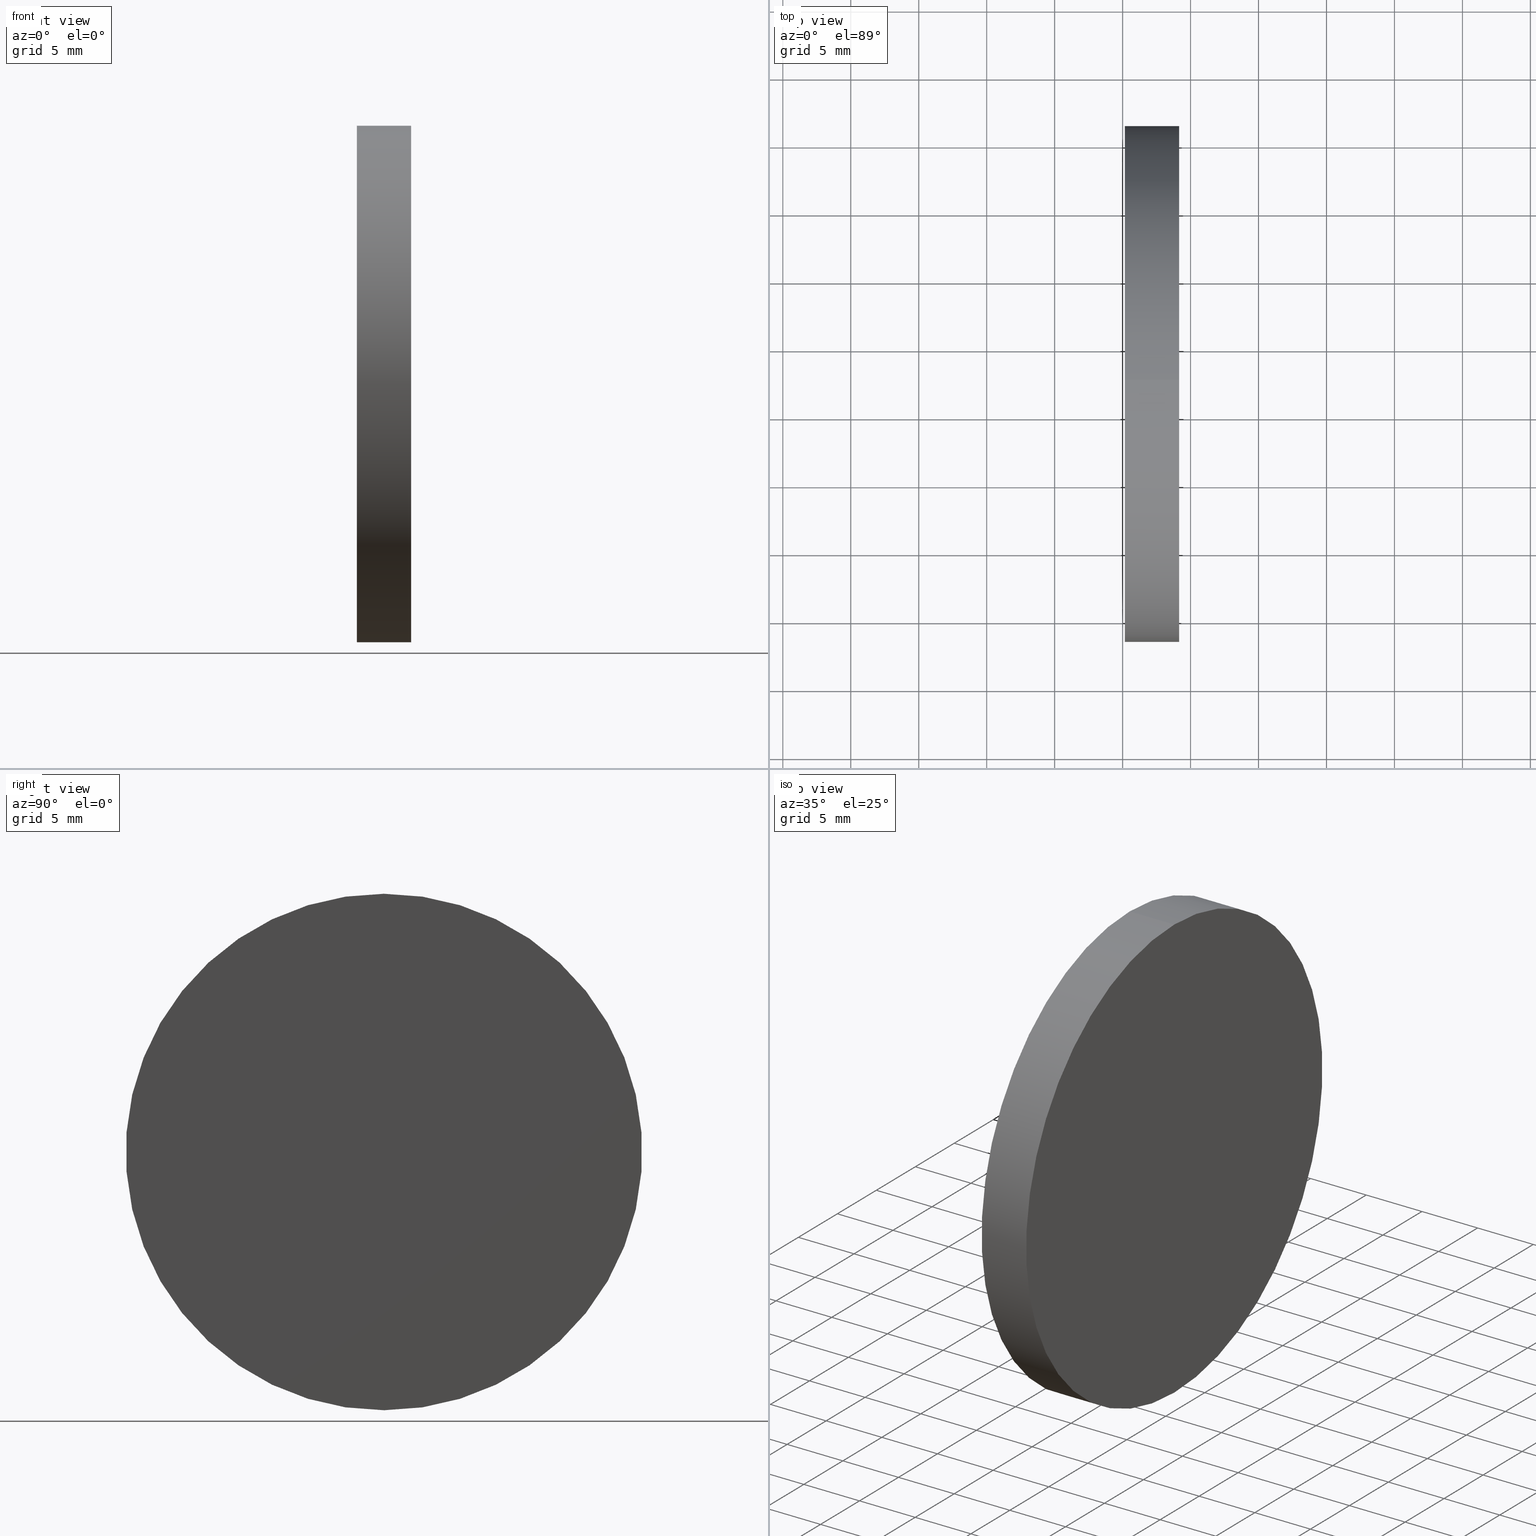
[diagram: canonical four-view strip — front | top / right | iso, engineering-drawing reading convention]
A machine part, canonical four-view strip (front | top / right | iso — engineering-drawing reading convention). The complete STEP part file that produces these views, byte-faithful:
ISO-10303-21;
HEADER;
FILE_DESCRIPTION (( 'STEP AP214' ),
    '1' );
FILE_NAME ('260010.STEP',
    '2019-07-15T05:20:49',
    ( '' ),
    ( '' ),
    'SwSTEP 2.0',
    'SolidWorks 2016',
    '' );
FILE_SCHEMA (( 'AUTOMOTIVE_DESIGN' ));
ENDSEC;

DATA;
#1 = DIRECTION ( 'NONE',  ( 0.0000000000000000000, 0.0000000000000000000, 1.000000000000000000 ) ) ;
#2 = EDGE_CURVE ( 'NONE', #48, #26, #30, .T. ) ;
#3 =( LENGTH_UNIT ( ) NAMED_UNIT ( * ) SI_UNIT ( .MILLI., .METRE. ) );
#4 = ADVANCED_FACE ( 'NONE', ( #54 ), #8, .F. ) ;
#5 = CARTESIAN_POINT ( 'NONE',  ( 264.1617025640067600, 96.29317934901541800, 0.0000000000000000000 ) ) ;
#6 = EDGE_CURVE ( 'NONE', #127, #26, #70, .T. ) ;
#7 = EDGE_LOOP ( 'NONE', ( #59, #42 ) ) ;
#8 = PLANE ( 'NONE',  #107 ) ;
#9 = AXIS2_PLACEMENT_3D ( 'NONE', #78, #24, #132 ) ;
#10 = VECTOR ( 'NONE', #97, 1000.000000000000000 ) ;
#11 = ADVANCED_BREP_SHAPE_REPRESENTATION ( '260010', ( #49, #128 ), #27 ) ;
#12 = DIRECTION ( 'NONE',  ( 0.0000000000000000000, 0.0000000000000000000, 1.000000000000000000 ) ) ;
#13 = DIRECTION ( 'NONE',  ( 0.0000000000000000000, 0.0000000000000000000, 1.000000000000000000 ) ) ;
#14 = PRODUCT_DEFINITION ( 'δ֪', '', #19, #55 ) ;
#15 = FILL_AREA_STYLE_COLOUR ( '', #35 ) ;
#16 = APPLICATION_PROTOCOL_DEFINITION ( 'draft international standard', 'automotive_design', 1998, #133 ) ;
#17 = EDGE_CURVE ( 'NONE', #127, #77, #79, .T. ) ;
#18 = ADVANCED_FACE ( 'NONE', ( #89 ), #58, .F. ) ;
#19 = PRODUCT_DEFINITION_FORMATION_WITH_SPECIFIED_SOURCE ( '�κ�', '', #122, .NOT_KNOWN. ) ;
#20 = SHAPE_DEFINITION_REPRESENTATION ( #75, #11 ) ;
#21 = DIRECTION ( 'NONE',  ( -1.000000000000000000, -0.0000000000000000000, -0.0000000000000000000 ) ) ;
#22 = ORIENTED_EDGE ( 'NONE', *, *, #80, .T. ) ;
#23 = UNCERTAINTY_MEASURE_WITH_UNIT (LENGTH_MEASURE( 1.000000000000000100E-005 ), #3, 'distance_accuracy_value', 'NONE');
#24 = DIRECTION ( 'NONE',  ( -1.000000000000000000, -0.0000000000000000000, -0.0000000000000000000 ) ) ;
#25 = PRODUCT_CONTEXT ( 'NONE', #51, 'mechanical' ) ;
#26 = VERTEX_POINT ( 'NONE', #103 ) ;
#27 =( GEOMETRIC_REPRESENTATION_CONTEXT ( 3 ) GLOBAL_UNCERTAINTY_ASSIGNED_CONTEXT ( ( #93 ) ) GLOBAL_UNIT_ASSIGNED_CONTEXT ( ( #108, #118, #38 ) ) REPRESENTATION_CONTEXT ( 'NONE', 'WORKASPACE' ) );
#28 = ORIENTED_EDGE ( 'NONE', *, *, #29, .F. ) ;
#29 = EDGE_CURVE ( 'NONE', #77, #127, #45, .T. ) ;
#30 = CIRCLE ( 'NONE', #92, 19.00000000000000400 ) ;
#31 = CARTESIAN_POINT ( 'NONE',  ( 264.1617025640067600, 77.29317934901541800, 0.0000000000000000000 ) ) ;
#32 = EDGE_CURVE ( 'NONE', #26, #48, #134, .T. ) ;
#33 = AXIS2_PLACEMENT_3D ( 'NONE', #46, #62, #47 ) ;
#34 = AXIS2_PLACEMENT_3D ( 'NONE', #31, #114, #12 ) ;
#35 = COLOUR_RGB ( '',1.000000000000000000, 1.000000000000000000, 1.000000000000000000 ) ;
#36 = COLOUR_RGB ( '',1.000000000000000000, 1.000000000000000000, 1.000000000000000000 ) ;
#37 = DIRECTION ( 'NONE',  ( -1.000000000000000000, -0.0000000000000000000, -0.0000000000000000000 ) ) ;
#38 =( NAMED_UNIT ( * ) SI_UNIT ( $, .STERADIAN. ) SOLID_ANGLE_UNIT ( ) );
#39 = CARTESIAN_POINT ( 'NONE',  ( 0.0000000000000000000, 0.0000000000000000000, 0.0000000000000000000 ) ) ;
#40 = MECHANICAL_DESIGN_GEOMETRIC_PRESENTATION_REPRESENTATION (  '', ( #124 ), #57 ) ;
#41 = ORIENTED_EDGE ( 'NONE', *, *, #17, .T. ) ;
#42 = ORIENTED_EDGE ( 'NONE', *, *, #2, .T. ) ;
#43 = PRODUCT_RELATED_PRODUCT_CATEGORY ( 'part', '', ( #122 ) ) ;
#44 = DIRECTION ( 'NONE',  ( -0.0000000000000000000, 0.0000000000000000000, 1.000000000000000000 ) ) ;
#45 = CIRCLE ( 'NONE', #34, 19.00000000000000400 ) ;
#46 = CARTESIAN_POINT ( 'NONE',  ( 260.1617025640067600, 77.29317934901541800, 0.0000000000000000000 ) ) ;
#47 = DIRECTION ( 'NONE',  ( 0.0000000000000000000, 0.0000000000000000000, -1.000000000000000000 ) ) ;
#48 = VERTEX_POINT ( 'NONE', #86 ) ;
#49 = MANIFOLD_SOLID_BREP ( '��ת1', #113 ) ;
#50 = SURFACE_SIDE_STYLE ('',( #121 ) ) ;
#51 = APPLICATION_CONTEXT ( 'automotive_design' ) ;
#52 =( GEOMETRIC_REPRESENTATION_CONTEXT ( 3 ) GLOBAL_UNCERTAINTY_ASSIGNED_CONTEXT ( ( #130 ) ) GLOBAL_UNIT_ASSIGNED_CONTEXT ( ( #117, #129, #60 ) ) REPRESENTATION_CONTEXT ( 'NONE', 'WORKASPACE' ) );
#53 = EDGE_LOOP ( 'NONE', ( #96, #28 ) ) ;
#54 = FACE_OUTER_BOUND ( 'NONE', #53, .T. ) ;
#55 = PRODUCT_DEFINITION_CONTEXT ( 'detailed design', #133, 'design' ) ;
#56 = DIRECTION ( 'NONE',  ( 0.0000000000000000000, 0.0000000000000000000, 1.000000000000000000 ) ) ;
#57 =( GEOMETRIC_REPRESENTATION_CONTEXT ( 3 ) GLOBAL_UNCERTAINTY_ASSIGNED_CONTEXT ( ( #23 ) ) GLOBAL_UNIT_ASSIGNED_CONTEXT ( ( #3, #76, #64 ) ) REPRESENTATION_CONTEXT ( 'NONE', 'WORKASPACE' ) );
#58 = PLANE ( 'NONE',  #33 ) ;
#59 = ORIENTED_EDGE ( 'NONE', *, *, #32, .T. ) ;
#60 =( NAMED_UNIT ( * ) SI_UNIT ( $, .STERADIAN. ) SOLID_ANGLE_UNIT ( ) );
#61 = LINE ( 'NONE', #71, #10 ) ;
#62 = DIRECTION ( 'NONE',  ( 1.000000000000000000, 0.0000000000000000000, 0.0000000000000000000 ) ) ;
#63 = CARTESIAN_POINT ( 'NONE',  ( 264.1617025640067600, 77.29317934901541800, 0.0000000000000000000 ) ) ;
#64 =( NAMED_UNIT ( * ) SI_UNIT ( $, .STERADIAN. ) SOLID_ANGLE_UNIT ( ) );
#65 = STYLED_ITEM ( 'NONE', ( #139 ), #49 ) ;
#66 = DIRECTION ( 'NONE',  ( -1.000000000000000000, -0.0000000000000000000, -0.0000000000000000000 ) ) ;
#67 = MECHANICAL_DESIGN_GEOMETRIC_PRESENTATION_REPRESENTATION (  '', ( #65 ), #52 ) ;
#68 = CARTESIAN_POINT ( 'NONE',  ( 254.0008019926160300, 77.29317934901541800, 0.0000000000000000000 ) ) ;
#69 = CYLINDRICAL_SURFACE ( 'NONE', #9, 19.00000000000000400 ) ;
#70 = LINE ( 'NONE', #84, #116 ) ;
#71 = CARTESIAN_POINT ( 'NONE',  ( 254.0008019926160300, 77.29317934901541800, -19.00000000000000400 ) ) ;
#72 = DIRECTION ( 'NONE',  ( -1.000000000000000000, -0.0000000000000000000, -0.0000000000000000000 ) ) ;
#73 = ORIENTED_EDGE ( 'NONE', *, *, #2, .F. ) ;
#74 = CARTESIAN_POINT ( 'NONE',  ( 264.1617025640067600, 77.29317934901541800, 19.00000000000000400 ) ) ;
#75 = PRODUCT_DEFINITION_SHAPE ( 'NONE', 'NONE',  #14 ) ;
#76 =( NAMED_UNIT ( * ) PLANE_ANGLE_UNIT ( ) SI_UNIT ( $, .RADIAN. ) );
#77 = VERTEX_POINT ( 'NONE', #115 ) ;
#78 = CARTESIAN_POINT ( 'NONE',  ( 254.0008019926160300, 77.29317934901541800, 0.0000000000000000000 ) ) ;
#79 = CIRCLE ( 'NONE', #100, 19.00000000000000400 ) ;
#80 = EDGE_CURVE ( 'NONE', #77, #48, #61, .T. ) ;
#81 = APPLICATION_PROTOCOL_DEFINITION ( 'draft international standard', 'automotive_design', 1998, #51 ) ;
#82 = ORIENTED_EDGE ( 'NONE', *, *, #32, .F. ) ;
#83 = DIRECTION ( 'NONE',  ( -1.000000000000000000, 0.0000000000000000000, -0.0000000000000000000 ) ) ;
#84 = CARTESIAN_POINT ( 'NONE',  ( 254.0008019926160300, 77.29317934901541800, 19.00000000000000400 ) ) ;
#85 = FILL_AREA_STYLE ('',( #140 ) ) ;
#86 = CARTESIAN_POINT ( 'NONE',  ( 260.1617025640067600, 77.29317934901541800, -19.00000000000000400 ) ) ;
#87 = ORIENTED_EDGE ( 'NONE', *, *, #80, .F. ) ;
#88 = DIRECTION ( 'NONE',  ( 1.000000000000000000, 0.0000000000000000000, 0.0000000000000000000 ) ) ;
#89 = FACE_OUTER_BOUND ( 'NONE', #7, .T. ) ;
#90 = SURFACE_STYLE_USAGE ( .BOTH. , #50 ) ;
#91 = EDGE_LOOP ( 'NONE', ( #41, #22, #82, #131 ) ) ;
#92 = AXIS2_PLACEMENT_3D ( 'NONE', #125, #126, #56 ) ;
#93 = UNCERTAINTY_MEASURE_WITH_UNIT (LENGTH_MEASURE( 1.000000000000000100E-005 ), #108, 'distance_accuracy_value', 'NONE');
#94 = SURFACE_SIDE_STYLE ('',( #137 ) ) ;
#95 = DIRECTION ( 'NONE',  ( 0.0000000000000000000, 0.0000000000000000000, 1.000000000000000000 ) ) ;
#96 = ORIENTED_EDGE ( 'NONE', *, *, #17, .F. ) ;
#97 = DIRECTION ( 'NONE',  ( -1.000000000000000000, -0.0000000000000000000, -0.0000000000000000000 ) ) ;
#98 = FACE_OUTER_BOUND ( 'NONE', #120, .T. ) ;
#99 = PRESENTATION_LAYER_ASSIGNMENT (  '', '', ( #124 ) ) ;
#100 = AXIS2_PLACEMENT_3D ( 'NONE', #63, #72, #95 ) ;
#101 = FACE_OUTER_BOUND ( 'NONE', #91, .T. ) ;
#102 = ADVANCED_FACE ( 'NONE', ( #101 ), #123, .T. ) ;
#103 = CARTESIAN_POINT ( 'NONE',  ( 260.1617025640067600, 77.29317934901541800, 19.00000000000000400 ) ) ;
#104 = CARTESIAN_POINT ( 'NONE',  ( 260.1617025640067600, 77.29317934901541800, 0.0000000000000000000 ) ) ;
#105 = SURFACE_STYLE_USAGE ( .BOTH. , #94 ) ;
#106 = DIRECTION ( 'NONE',  ( 0.0000000000000000000, 0.0000000000000000000, 1.000000000000000000 ) ) ;
#107 = AXIS2_PLACEMENT_3D ( 'NONE', #5, #83, #44 ) ;
#108 =( LENGTH_UNIT ( ) NAMED_UNIT ( * ) SI_UNIT ( .MILLI., .METRE. ) );
#109 = FILL_AREA_STYLE ('',( #15 ) ) ;
#110 = PRESENTATION_STYLE_ASSIGNMENT (( #90 ) ) ;
#111 = ORIENTED_EDGE ( 'NONE', *, *, #29, .T. ) ;
#112 = ADVANCED_FACE ( 'NONE', ( #98 ), #69, .T. ) ;
#113 = CLOSED_SHELL ( 'NONE', ( #102, #18, #112, #4 ) ) ;
#114 = DIRECTION ( 'NONE',  ( -1.000000000000000000, -0.0000000000000000000, -0.0000000000000000000 ) ) ;
#115 = CARTESIAN_POINT ( 'NONE',  ( 264.1617025640067600, 77.29317934901541800, -19.00000000000000400 ) ) ;
#116 = VECTOR ( 'NONE', #21, 1000.000000000000000 ) ;
#117 =( LENGTH_UNIT ( ) NAMED_UNIT ( * ) SI_UNIT ( .MILLI., .METRE. ) );
#118 =( NAMED_UNIT ( * ) PLANE_ANGLE_UNIT ( ) SI_UNIT ( $, .RADIAN. ) );
#119 = PRESENTATION_LAYER_ASSIGNMENT (  '', '', ( #65 ) ) ;
#120 = EDGE_LOOP ( 'NONE', ( #87, #111, #136, #73 ) ) ;
#121 = SURFACE_STYLE_FILL_AREA ( #109 ) ;
#122 = PRODUCT ( '260010', '260010', '', ( #25 ) ) ;
#123 = CYLINDRICAL_SURFACE ( 'NONE', #138, 19.00000000000000400 ) ;
#124 = STYLED_ITEM ( 'NONE', ( #110 ), #11 ) ;
#125 = CARTESIAN_POINT ( 'NONE',  ( 260.1617025640067600, 77.29317934901541800, 0.0000000000000000000 ) ) ;
#126 = DIRECTION ( 'NONE',  ( -1.000000000000000000, -0.0000000000000000000, -0.0000000000000000000 ) ) ;
#127 = VERTEX_POINT ( 'NONE', #74 ) ;
#128 = AXIS2_PLACEMENT_3D ( 'NONE', #39, #1, #88 ) ;
#129 =( NAMED_UNIT ( * ) PLANE_ANGLE_UNIT ( ) SI_UNIT ( $, .RADIAN. ) );
#130 = UNCERTAINTY_MEASURE_WITH_UNIT (LENGTH_MEASURE( 1.000000000000000100E-005 ), #117, 'distance_accuracy_value', 'NONE');
#131 = ORIENTED_EDGE ( 'NONE', *, *, #6, .F. ) ;
#132 = DIRECTION ( 'NONE',  ( 0.0000000000000000000, 0.0000000000000000000, 1.000000000000000000 ) ) ;
#133 = APPLICATION_CONTEXT ( 'automotive_design' ) ;
#134 = CIRCLE ( 'NONE', #135, 19.00000000000000400 ) ;
#135 = AXIS2_PLACEMENT_3D ( 'NONE', #104, #37, #13 ) ;
#136 = ORIENTED_EDGE ( 'NONE', *, *, #6, .T. ) ;
#137 = SURFACE_STYLE_FILL_AREA ( #85 ) ;
#138 = AXIS2_PLACEMENT_3D ( 'NONE', #68, #66, #106 ) ;
#139 = PRESENTATION_STYLE_ASSIGNMENT (( #105 ) ) ;
#140 = FILL_AREA_STYLE_COLOUR ( '', #36 ) ;
ENDSEC;
END-ISO-10303-21;
